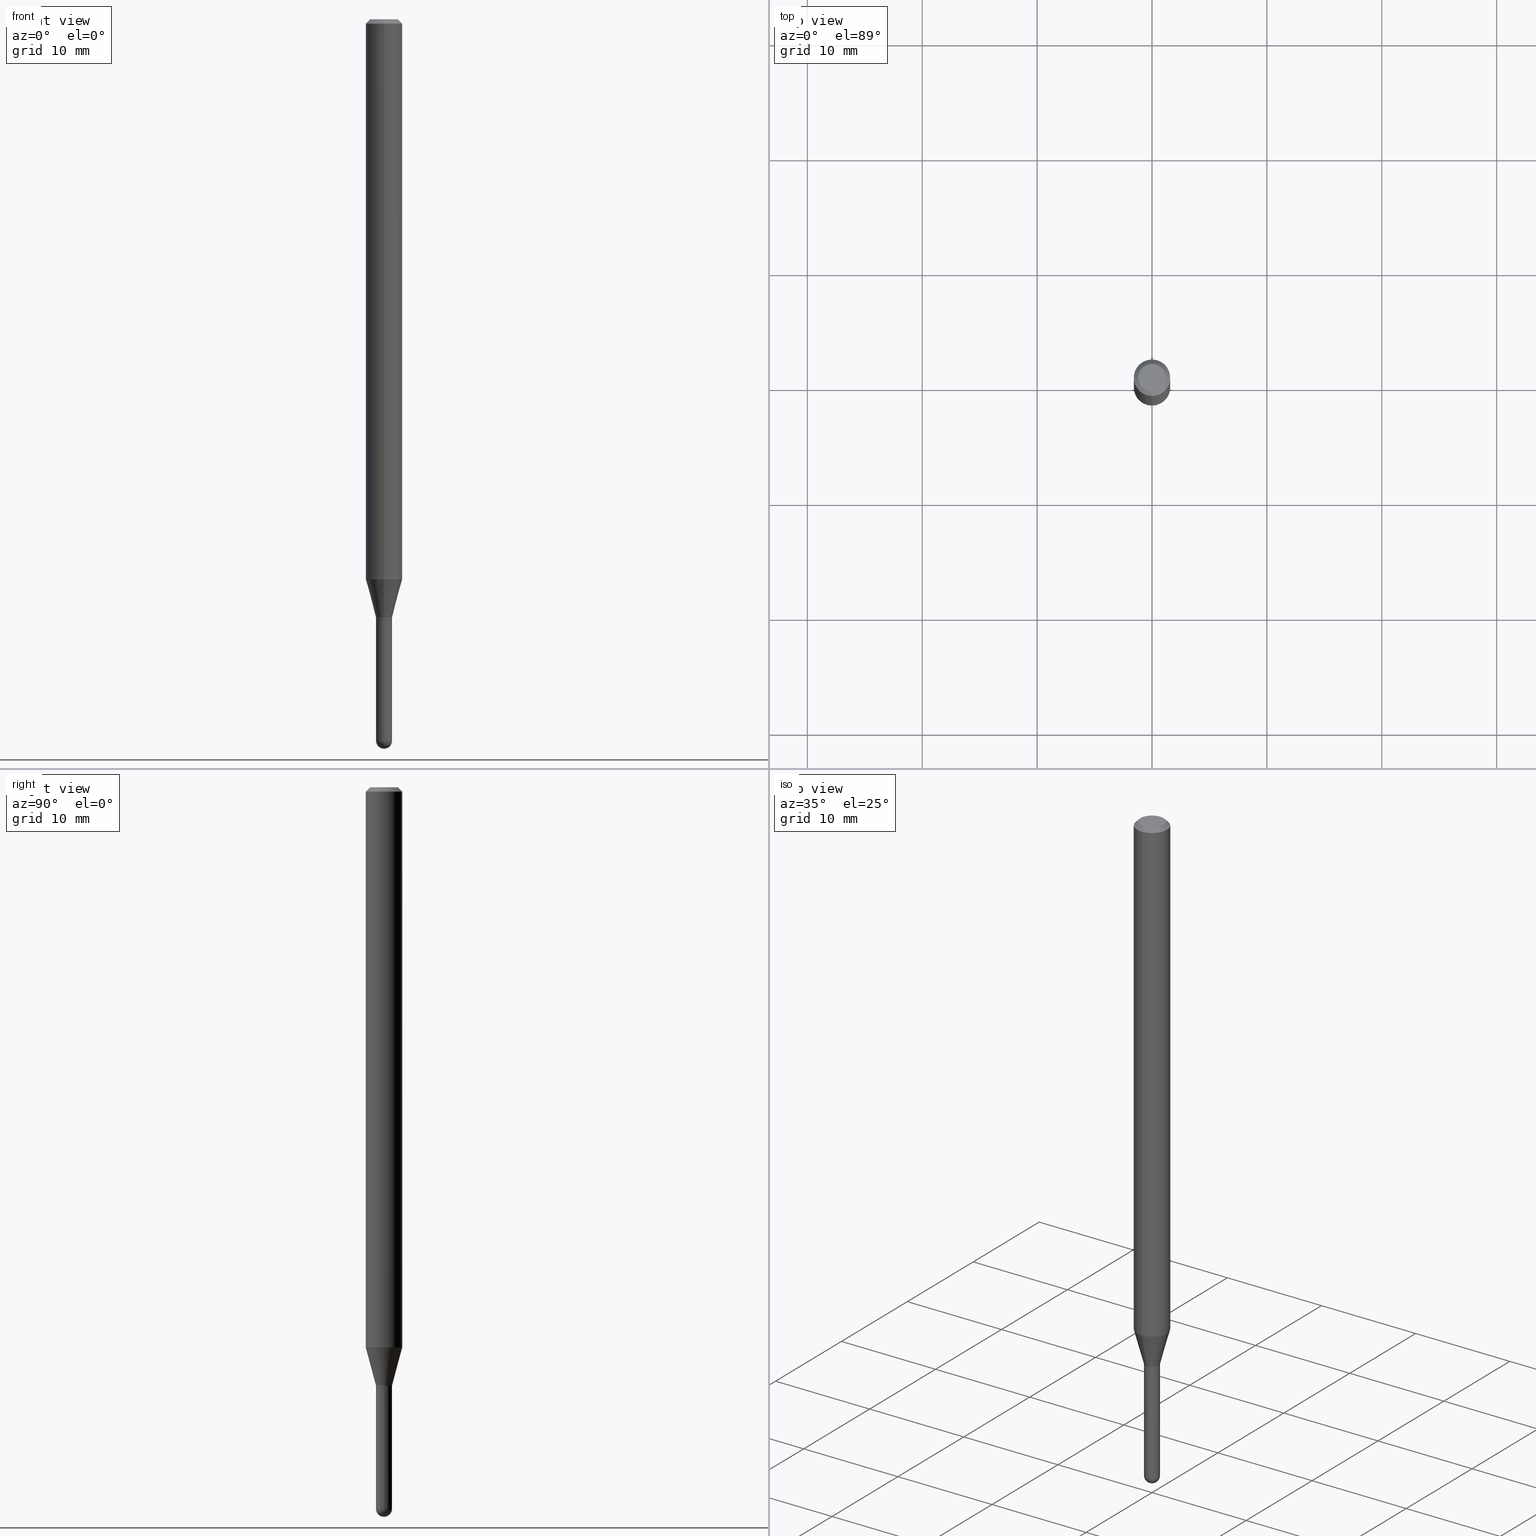
[diagram: canonical four-view strip — front | top / right | iso, engineering-drawing reading convention]
A machine part, canonical four-view strip (front | top / right | iso — engineering-drawing reading convention). The complete STEP part file that produces these views, byte-faithful:
ISO-10303-21;
HEADER;
FILE_DESCRIPTION (( 'STEP AP203' ),
    '1' );
FILE_NAME ('02758.STEP',
    '2024-03-07T21:16:46',
    ( '' ),
    ( '' ),
    'SwSTEP 2.0',
    'SolidWorks 2023',
    '' );
FILE_SCHEMA (( 'CONFIG_CONTROL_DESIGN' ));
ENDSEC;

DATA;
#1 = DIRECTION ( 'NONE',  ( -6.982962677686266711E-15, -1.000000000000000000, 3.491506698791518354E-15 ) ) ;
#2 = PERSON_AND_ORGANIZATION_ROLE ( 'creator' ) ;
#3 = FACE_OUTER_BOUND ( 'NONE', #210, .T. ) ;
#4 = CYLINDRICAL_SURFACE ( 'NONE', #408, 0.02750000000000000014 ) ;
#5 = ORIENTED_EDGE ( 'NONE', *, *, #307, .T. ) ;
#6 = CIRCLE ( 'NONE', #41, 0.02749999999999964972 ) ;
#7 = CONICAL_SURFACE ( 'NONE', #315, 0.02749999999999964972, 0.2617993877991502960 ) ;
#8 = ORIENTED_EDGE ( 'NONE', *, *, #510, .T. ) ;
#9 = EDGE_LOOP ( 'NONE', ( #335, #368, #131, #413 ) ) ;
#10 = ORIENTED_EDGE ( 'NONE', *, *, #370, .F. ) ;
#11 = DIRECTION ( 'NONE',  ( -6.982962677686265133E-15, -1.000000000000000000, 0.000000000000000000 ) ) ;
#12 = AXIS2_PLACEMENT_3D ( 'NONE', #191, #246, #56 ) ;
#13 = AXIS2_PLACEMENT_3D ( 'NONE', #217, #214, #331 ) ;
#14 = ORIENTED_EDGE ( 'NONE', *, *, #364, .F. ) ;
#15 = CARTESIAN_POINT ( 'NONE',  ( 5.013174749727065980E-29, -7.157588732522609785E-15, -2.049999999999999822 ) ) ;
#16 = ORIENTED_EDGE ( 'NONE', *, *, #126, .F. ) ;
#17 = DIRECTION ( 'NONE',  ( 5.024295867788190974E-15, 0.7071067811865681119, 0.7071067811865270336 ) ) ;
#18 = DIRECTION ( 'NONE',  ( -6.982962677686266711E-15, -1.000000000000000000, 0.000000000000000000 ) ) ;
#19 = EDGE_CURVE ( 'NONE', #230, #208, #312, .T. ) ;
#20 = CARTESIAN_POINT ( 'NONE',  ( 1.918465386552773872E-16, 0.02699999999999280753, -2.060000000000000053 ) ) ;
#21 = AXIS2_PLACEMENT_3D ( 'NONE', #455, #458, #506 ) ;
#22 = EDGE_CURVE ( 'NONE', #59, #359, #165, .T. ) ;
#23 = EDGE_LOOP ( 'NONE', ( #38, #404 ) ) ;
#24 = DIRECTION ( 'NONE',  ( -6.982962677686265922E-15, -1.000000000000000000, 3.483106191921935554E-15 ) ) ;
#25 = LINE ( 'NONE', #258, #195 ) ;
#26 = EDGE_CURVE ( 'NONE', #443, #442, #293, .T. ) ;
#27 = DIRECTION ( 'NONE',  ( -6.982962677686265922E-15, -1.000000000000000000, 3.491506698791517959E-15 ) ) ;
#28 = CARTESIAN_POINT ( 'NONE',  ( 0.000000000000000000, 0.000000000000000000, 0.000000000000000000 ) ) ;
#29 = UNCERTAINTY_MEASURE_WITH_UNIT (LENGTH_MEASURE( 1.000000000000000082E-05 ), #336, 'distance_accuracy_value', 'NONE');
#30 = CLOSED_SHELL ( 'NONE', ( #281, #187, #394, #270, #206 ) ) ;
#31 = CIRCLE ( 'NONE', #12, 0.02750000000000000014 ) ;
#32 = CIRCLE ( 'NONE', #462, 0.02749999999999964972 ) ;
#33 =( NAMED_UNIT ( * ) PLANE_ANGLE_UNIT ( ) SI_UNIT ( $, .RADIAN. ) );
#34 = CARTESIAN_POINT ( 'NONE',  ( 6.044069915997506284E-29, -8.636055388987333140E-15, -2.472500000000000142 ) ) ;
#35 = CARTESIAN_POINT ( 'NONE',  ( 1.953992523340250376E-16, 0.02749999999999964972, -9.601643421676552804E-17 ) ) ;
#36 = SPHERICAL_SURFACE ( 'NONE', #470, 0.02749999999999982320 ) ;
#37 = EDGE_CURVE ( 'NONE', #385, #306, #423, .T. ) ;
#38 = ORIENTED_EDGE ( 'NONE', *, *, #276, .T. ) ;
#39 = LINE ( 'NONE', #343, #202 ) ;
#40 = FACE_OUTER_BOUND ( 'NONE', #9, .T. ) ;
#41 = AXIS2_PLACEMENT_3D ( 'NONE', #344, #236, #507 ) ;
#42 = DIRECTION ( 'NONE',  ( -2.445451097427837378E-29, 3.491506698791517959E-15, 1.000000000000000000 ) ) ;
#43 = PERSON_AND_ORGANIZATION_ROLE ( 'classification_officer' ) ;
#44 = DIRECTION ( 'NONE',  ( 1.000000000000000000, -6.982962677686266711E-15, 4.876176775795935793E-29 ) ) ;
#45 = ORIENTED_EDGE ( 'NONE', *, *, #301, .F. ) ;
#46 = CIRCLE ( 'NONE', #21, 0.06250000000000000000 ) ;
#47 = DATE_TIME_ROLE ( 'creation_date' ) ;
#48 = CARTESIAN_POINT ( 'NONE',  ( 1.920314736364321499E-16, 0.02749999999999128142, -2.472499999999999254 ) ) ;
#49 = EDGE_LOOP ( 'NONE', ( #282, #444, #205, #274 ) ) ;
#50 = EDGE_CURVE ( 'NONE', #443, #306, #31, .T. ) ;
#51 = ORIENTED_EDGE ( 'NONE', *, *, #58, .T. ) ;
#52 = APPROVAL ( #71, 'UNSPECIFIED' ) ;
#53 = ORIENTED_EDGE ( 'NONE', *, *, #75, .F. ) ;
#54 = DIRECTION ( 'NONE',  ( 2.445451097427837098E-29, -3.491506698791517959E-15, -1.000000000000000000 ) ) ;
#55 = AXIS2_PLACEMENT_3D ( 'NONE', #311, #232, #269 ) ;
#56 = DIRECTION ( 'NONE',  ( 1.000000000000000000, -6.982962677686279332E-15, 0.000000000000000000 ) ) ;
#57 = CARTESIAN_POINT ( 'NONE',  ( 5.036406535152632106E-29, -7.190758046161131147E-15, -2.059500000000000330 ) ) ;
#58 = EDGE_CURVE ( 'NONE', #359, #420, #66, .T. ) ;
#59 = VERTEX_POINT ( 'NONE', #297 ) ;
#60 = DIRECTION ( 'NONE',  ( -6.982962677686266711E-15, -1.000000000000000000, 0.000000000000000000 ) ) ;
#61 = CC_DESIGN_PERSON_AND_ORGANIZATION_ASSIGNMENT ( #244, #43, ( #373 ) ) ;
#62 = ORIENTED_EDGE ( 'NONE', *, *, #37, .T. ) ;
#63 = AXIS2_PLACEMENT_3D ( 'NONE', #459, #264, #266 ) ;
#64 = EDGE_CURVE ( 'NONE', #180, #284, #490, .T. ) ;
#65 = LOCAL_TIME ( 16, 16, 46.00000000000000000, #397 ) ;
#66 = LINE ( 'NONE', #20, #247 ) ;
#67 = MECHANICAL_CONTEXT ( 'NONE', #495, 'mechanical' ) ;
#68 = CARTESIAN_POINT ( 'NONE',  ( 6.046421623292748621E-29, -8.632687610289675147E-15, -2.472499999999999254 ) ) ;
#69 = DIRECTION ( 'NONE',  ( -4.851104656540964275E-15, -0.7071067811865500152, -0.7071067811865450192 ) ) ;
#70 = APPLICATION_PROTOCOL_DEFINITION ( 'international standard', 'config_control_design', 1994, #495 ) ;
#71 = APPROVAL_STATUS ( 'not_yet_approved' ) ;
#72 = DIRECTION ( 'NONE',  ( -6.982962677686266711E-15, -1.000000000000000000, 3.491506698791518354E-15 ) ) ;
#73 = LOCAL_TIME ( 16, 16, 46.00000000000000000, #234 ) ;
#74 = FACE_OUTER_BOUND ( 'NONE', #485, .T. ) ;
#75 = EDGE_CURVE ( 'NONE', #436, #230, #447, .T. ) ;
#76 = CARTESIAN_POINT ( 'NONE',  ( -4.364351673553912750E-16, -0.06250000000000005551, -0.01500000000000011047 ) ) ;
#77 = VERTEX_POINT ( 'NONE', #184 ) ;
#78 = DIRECTION ( 'NONE',  ( -2.445451097427837378E-29, 3.491506698791517959E-15, 1.000000000000000000 ) ) ;
#79 = DIRECTION ( 'NONE',  ( -6.982962677686265922E-15, -1.000000000000000000, 3.491506698791517959E-15 ) ) ;
#80 = VERTEX_POINT ( 'NONE', #371 ) ;
#81 = VECTOR ( 'NONE', #90, 39.37007874015748143 ) ;
#82 = APPROVAL_PERSON_ORGANIZATION ( #333, #52, #157 ) ;
#83 = CALENDAR_DATE ( 2024, 7, 3 ) ;
#84 = CARTESIAN_POINT ( 'NONE',  ( 5.013174749727065980E-29, -7.157588732522609785E-15, -2.049999999999999822 ) ) ;
#85 = ORIENTED_EDGE ( 'NONE', *, *, #356, .F. ) ;
#86 = ADVANCED_FACE ( 'NONE', ( #107 ), #186, .T. ) ;
#87 = SHAPE_DEFINITION_REPRESENTATION ( #505, #275 ) ;
#88 = DIRECTION ( 'NONE',  ( 6.982962677686265922E-15, 1.000000000000000000, -3.483106191921935554E-15 ) ) ;
#89 = DATE_AND_TIME ( #167, #96 ) ;
#90 = DIRECTION ( 'NONE',  ( -1.807323732225330139E-15, -0.2588190451025181860, 0.9659258262890689783 ) ) ;
#91 = EDGE_LOOP ( 'NONE', ( #407, #316 ) ) ;
#92 = APPROVAL_DATE_TIME ( #132, #466 ) ;
#93 = APPROVAL_STATUS ( 'not_yet_approved' ) ;
#94 = ORIENTED_EDGE ( 'NONE', *, *, #499, .F. ) ;
#95 = CIRCLE ( 'NONE', #308, 0.02750000000000000014 ) ;
#96 = LOCAL_TIME ( 16, 16, 46.00000000000000000, #399 ) ;
#97 = EDGE_CURVE ( 'NONE', #284, #443, #330, .T. ) ;
#98 = CARTESIAN_POINT ( 'NONE',  ( 3.316907271900976096E-16, 0.04749999999999999362, -3.299194397499030855E-16 ) ) ;
#99 = EDGE_LOOP ( 'NONE', ( #139, #174, #271, #177 ) ) ;
#100 = CARTESIAN_POINT ( 'NONE',  ( -0.02750000000000000014, -7.717170331819249590E-15, -2.060000000000000053 ) ) ;
#101 = ORIENTED_EDGE ( 'NONE', *, *, #22, .T. ) ;
#102 = ORIENTED_EDGE ( 'NONE', *, *, #110, .T. ) ;
#103 = ADVANCED_FACE ( 'NONE', ( #150 ), #295, .T. ) ;
#104 = DIRECTION ( 'NONE',  ( -2.445451097427837378E-29, 3.491506698791517959E-15, 1.000000000000000000 ) ) ;
#105 = CIRCLE ( 'NONE', #55, 0.02749999999999982320 ) ;
#106 = CC_DESIGN_SECURITY_CLASSIFICATION ( #373, ( #156 ) ) ;
#107 = FACE_OUTER_BOUND ( 'NONE', #496, .T. ) ;
#108 = CARTESIAN_POINT ( 'NONE',  ( 6.044069915997506284E-29, -8.636055388987333140E-15, -2.472500000000000142 ) ) ;
#109 = LINE ( 'NONE', #334, #145 ) ;
#110 = EDGE_CURVE ( 'NONE', #420, #80, #313, .T. ) ;
#111 = CARTESIAN_POINT ( 'NONE',  ( 5.036406535152632106E-29, -7.190758046161131147E-15, -2.059500000000000330 ) ) ;
#112 = VECTOR ( 'NONE', #138, 39.37007874015748143 ) ;
#113 = CARTESIAN_POINT ( 'NONE',  ( 6.046421623292748621E-29, -8.632687610289675147E-15, -2.472499999999999254 ) ) ;
#114 = PLANE ( 'NONE',  #511 ) ;
#115 = APPLICATION_PROTOCOL_DEFINITION ( 'international standard', 'config_control_design', 1994, #416 ) ;
#116 = APPROVAL_ROLE ( '' ) ;
#117 = DIRECTION ( 'NONE',  ( -2.445468806185136597E-29, 3.491481338843145583E-15, 1.000000000000000000 ) ) ;
#118 = DIRECTION ( 'NONE',  ( 6.982962677686265922E-15, 1.000000000000000000, -3.483106191921935554E-15 ) ) ;
#119 = FACE_OUTER_BOUND ( 'NONE', #357, .T. ) ;
#120 = ORIENTED_EDGE ( 'NONE', *, *, #290, .F. ) ;
#121 = AXIS2_PLACEMENT_3D ( 'NONE', #34, #396, #204 ) ;
#122 = AXIS2_PLACEMENT_3D ( 'NONE', #28, #226, #252 ) ;
#123 = CARTESIAN_POINT ( 'NONE',  ( 1.953992523340751796E-16, 0.02749999999999249226, -2.049999999999999822 ) ) ;
#124 = LINE ( 'NONE', #432, #81 ) ;
#125 = CARTESIAN_POINT ( 'NONE',  ( 3.668176646141836571E-31, -5.237260048187391028E-17, -0.01500000000000032904 ) ) ;
#126 = EDGE_CURVE ( 'NONE', #420, #77, #251, .T. ) ;
#127 = PERSON_AND_ORGANIZATION_ROLE ( 'design_supplier' ) ;
#128 = CARTESIAN_POINT ( 'NONE',  ( 0.02750000000000000014, -8.104601057789650990E-15, -2.472499999999999254 ) ) ;
#129 = VECTOR ( 'NONE', #448, 39.37007874015748143 ) ;
#130 = CARTESIAN_POINT ( 'NONE',  ( 4.693745578721162808E-29, -6.701521918702610690E-15, -1.919378221735088097 ) ) ;
#131 = ORIENTED_EDGE ( 'NONE', *, *, #215, .F. ) ;
#132 = DATE_AND_TIME ( #265, #409 ) ;
#133 = EDGE_CURVE ( 'NONE', #385, #284, #105, .T. ) ;
#134 = MANIFOLD_SOLID_BREP ( 'Body-Move/Copy2[2]', #422 ) ;
#135 = VERTEX_POINT ( 'NONE', #387 ) ;
#136 = PLANE ( 'NONE',  #341 ) ;
#137 = ORIENTED_EDGE ( 'NONE', *, *, #364, .T. ) ;
#138 = DIRECTION ( 'NONE',  ( -2.445451097427837098E-29, 3.491506698791517959E-15, 1.000000000000000000 ) ) ;
#139 = ORIENTED_EDGE ( 'NONE', *, *, #215, .T. ) ;
#140 = CARTESIAN_POINT ( 'NONE',  ( 0.000000000000000000, 0.000000000000000000, 0.000000000000000000 ) ) ;
#141 = ORIENTED_EDGE ( 'NONE', *, *, #417, .F. ) ;
#142 = CARTESIAN_POINT ( 'NONE',  ( -0.02750000000000000014, 1.953992523340275521E-16, -1.352707149820099181E-30 ) ) ;
#143 = DIRECTION ( 'NONE',  ( -2.445451097427837378E-29, 3.491506698791517959E-15, 1.000000000000000000 ) ) ;
#144 = FACE_OUTER_BOUND ( 'NONE', #433, .T. ) ;
#145 = VECTOR ( 'NONE', #151, 39.37007874015748143 ) ;
#146 = ORIENTED_EDGE ( 'NONE', *, *, #449, .T. ) ;
#147 = DIRECTION ( 'NONE',  ( -2.445451097427837378E-29, 3.491506698791517959E-15, 1.000000000000000000 ) ) ;
#148 = EDGE_CURVE ( 'NONE', #212, #488, #124, .T. ) ;
#149 = CYLINDRICAL_SURFACE ( 'NONE', #207, 0.02750000000000000014 ) ;
#150 = FACE_OUTER_BOUND ( 'NONE', #426, .T. ) ;
#151 = DIRECTION ( 'NONE',  ( -4.937700262164674260E-15, -0.7071067811865632269, 0.7071067811865319186 ) ) ;
#152 = CC_DESIGN_DATE_AND_TIME_ASSIGNMENT ( #227, #502, ( #373 ) ) ;
#153 = CARTESIAN_POINT ( 'NONE',  ( 5.037629260701344785E-29, -7.192503799510525347E-15, -2.060000000000000053 ) ) ;
#154 = DIRECTION ( 'NONE',  ( -2.445468806185136597E-29, 3.491481338843145583E-15, 1.000000000000000000 ) ) ;
#155 = AXIS2_PLACEMENT_3D ( 'NONE', #111, #219, #60 ) ;
#156 = PRODUCT_DEFINITION_FORMATION_WITH_SPECIFIED_SOURCE ( 'ANY', '', #288, .NOT_KNOWN. ) ;
#157 = APPROVAL_ROLE ( '' ) ;
#158 = PERSON_AND_ORGANIZATION ( #464, #512 ) ;
#159 = DESIGN_CONTEXT ( 'detailed design', #416, 'design' ) ;
#160 = EDGE_CURVE ( 'NONE', #442, #135, #339, .T. ) ;
#161 = CARTESIAN_POINT ( 'NONE',  ( 5.037665740741381905E-29, -7.192451558016880271E-15, -2.060000000000000053 ) ) ;
#162 = ADVANCED_FACE ( 'NONE', ( #40 ), #203, .T. ) ;
#163 = APPROVAL_STATUS ( 'not_yet_approved' ) ;
#164 = DIRECTION ( 'NONE',  ( -1.000000000000000000, 6.982962677686265922E-15, -4.883557194083112340E-29 ) ) ;
#165 = CIRCLE ( 'NONE', #253, 0.02699999999999999969 ) ;
#166 = CARTESIAN_POINT ( 'NONE',  ( 1.936228954946764066E-16, 0.02699999999999280753, -2.060000000000000053 ) ) ;
#167 = CALENDAR_DATE ( 2024, 7, 3 ) ;
#168 = DIRECTION ( 'NONE',  ( -2.445468806185136597E-29, 3.491481338843145583E-15, 1.000000000000000000 ) ) ;
#169 = PERSON_AND_ORGANIZATION ( #464, #512 ) ;
#170 = CARTESIAN_POINT ( 'NONE',  ( -1.920314736363197372E-16, -0.02750000000000681066, -2.049999999999999822 ) ) ;
#171 = AXIS2_PLACEMENT_3D ( 'NONE', #386, #78, #299 ) ;
#172 = EDGE_LOOP ( 'NONE', ( #101, #51, #94, #45 ) ) ;
#173 = CONICAL_SURFACE ( 'NONE', #392, 0.06250000000000000000, 0.7853981633974483900 ) ;
#174 = ORIENTED_EDGE ( 'NONE', *, *, #356, .T. ) ;
#175 = ORIENTED_EDGE ( 'NONE', *, *, #220, .T. ) ;
#176 = LINE ( 'NONE', #480, #401 ) ;
#177 = ORIENTED_EDGE ( 'NONE', *, *, #148, .F. ) ;
#178 = VECTOR ( 'NONE', #200, 39.37007874015748143 ) ;
#179 = APPROVAL_PERSON_ORGANIZATION ( #169, #257, #319 ) ;
#180 = VERTEX_POINT ( 'NONE', #128 ) ;
#181 = CARTESIAN_POINT ( 'NONE',  ( -3.773273898774340269E-16, -0.04749999999999999362, -1.622991749220149071E-16 ) ) ;
#182 = ORIENTED_EDGE ( 'NONE', *, *, #64, .T. ) ;
#183 = CARTESIAN_POINT ( 'NONE',  ( -4.287811248607203282E-16, -0.06250000000000005551, -0.01500000000000011047 ) ) ;
#184 = CARTESIAN_POINT ( 'NONE',  ( 3.197442310920924528E-16, 0.02749999999999249226, -2.049999999999999822 ) ) ;
#185 = CONICAL_SURFACE ( 'NONE', #291, 0.02749999999999964972, 0.2617993877991502960 ) ;
#186 = CYLINDRICAL_SURFACE ( 'NONE', #298, 0.06250000000000000000 ) ;
#187 = ADVANCED_FACE ( 'NONE', ( #3 ), #393, .T. ) ;
#188 = DIRECTION ( 'NONE',  ( -2.445451097427837098E-29, 3.491506698791517959E-15, 1.000000000000000000 ) ) ;
#189 = ORIENTED_EDGE ( 'NONE', *, *, #370, .T. ) ;
#190 = APPROVAL_DATE_TIME ( #342, #52 ) ;
#191 = CARTESIAN_POINT ( 'NONE',  ( 6.046421623292748621E-29, -8.632687610289675147E-15, -2.472499999999999254 ) ) ;
#192 = CARTESIAN_POINT ( 'NONE',  ( 4.364351673553919652E-16, 0.06249999999999995143, -0.01500000000000054588 ) ) ;
#193 = ADVANCED_FACE ( 'NONE', ( #472 ), #185, .T. ) ;
#194 = AXIS2_PLACEMENT_3D ( 'NONE', #130, #346, #305 ) ;
#195 = VECTOR ( 'NONE', #188, 39.37007874015748143 ) ;
#196 = DIRECTION ( 'NONE',  ( 4.937700262164548042E-15, 0.7071067811865451302, -0.7071067811865499042 ) ) ;
#197 = PRODUCT_DEFINITION ( 'UNKNOWN', '', #156, #159 ) ;
#198 = DIRECTION ( 'NONE',  ( -6.982962677686266711E-15, -1.000000000000000000, 0.000000000000000000 ) ) ;
#199 = CARTESIAN_POINT ( 'NONE',  ( 6.112496161815219763E-29, -8.730387236456689995E-15, -2.499999999999999556 ) ) ;
#200 = DIRECTION ( 'NONE',  ( -2.445451097427837098E-29, 3.491506698791517959E-15, 1.000000000000000000 ) ) ;
#201 = ADVANCED_FACE ( 'NONE', ( #239 ), #314, .F. ) ;
#202 = VECTOR ( 'NONE', #340, 39.37007874015748143 ) ;
#203 = CYLINDRICAL_SURFACE ( 'NONE', #372, 0.02749999999999964972 ) ;
#204 = DIRECTION ( 'NONE',  ( 6.982962677686265922E-15, 1.000000000000000000, 0.000000000000000000 ) ) ;
#205 = ORIENTED_EDGE ( 'NONE', *, *, #301, .T. ) ;
#206 = ADVANCED_FACE ( 'NONE', ( #229 ), #4, .T. ) ;
#207 = AXIS2_PLACEMENT_3D ( 'NONE', #475, #402, #296 ) ;
#208 = VERTEX_POINT ( 'NONE', #351 ) ;
#209 = ORIENTED_EDGE ( 'NONE', *, *, #26, .F. ) ;
#210 = EDGE_LOOP ( 'NONE', ( #317, #62, #355, #218 ) ) ;
#211 = DIRECTION ( 'NONE',  ( 6.982962677686265922E-15, 1.000000000000000000, -3.491506698791517959E-15 ) ) ;
#212 = VERTEX_POINT ( 'NONE', #170 ) ;
#213 = AXIS2_PLACEMENT_3D ( 'NONE', #418, #329, #24 ) ;
#214 = DIRECTION ( 'NONE',  ( -2.445451097427837378E-29, 3.491506698791517959E-15, 1.000000000000000000 ) ) ;
#215 = EDGE_CURVE ( 'NONE', #212, #77, #6, .T. ) ;
#216 = DIRECTION ( 'NONE',  ( 1.000000000000000000, -6.982962677686279332E-15, 0.000000000000000000 ) ) ;
#217 = CARTESIAN_POINT ( 'NONE',  ( 4.693745578721162808E-29, -6.701521918702610690E-15, -1.919378221735088097 ) ) ;
#218 = ORIENTED_EDGE ( 'NONE', *, *, #97, .F. ) ;
#219 = DIRECTION ( 'NONE',  ( -2.445451097427837378E-29, 3.491506698791517959E-15, 1.000000000000000000 ) ) ;
#220 = EDGE_CURVE ( 'NONE', #488, #358, #482, .T. ) ;
#221 = DIRECTION ( 'NONE',  ( -1.000000000000000000, 7.105427357601001070E-15, -4.926315508542082329E-29 ) ) ;
#222 = LOCAL_TIME ( 16, 16, 46.00000000000000000, #302 ) ;
#223 = ORIENTED_EDGE ( 'NONE', *, *, #148, .T. ) ;
#224 = PERSON_AND_ORGANIZATION_ROLE ( 'design_owner' ) ;
#225 = ORIENTED_EDGE ( 'NONE', *, *, #19, .T. ) ;
#226 = DIRECTION ( 'NONE',  ( 0.000000000000000000, 0.000000000000000000, 1.000000000000000000 ) ) ;
#227 = DATE_AND_TIME ( #350, #65 ) ;
#228 = CARTESIAN_POINT ( 'NONE',  ( 1.953992523340747112E-16, 0.02749999999999236389, -2.059500000000000330 ) ) ;
#229 = FACE_OUTER_BOUND ( 'NONE', #405, .T. ) ;
#230 = VERTEX_POINT ( 'NONE', #76 ) ;
#231 = CARTESIAN_POINT ( 'NONE',  ( 4.440892098501092576E-16, 0.06249999999999326927, -1.919378221735088319 ) ) ;
#232 = DIRECTION ( 'NONE',  ( 1.000000000000000000, -6.982962677686265922E-15, 4.883557194083112340E-29 ) ) ;
#233 = CC_DESIGN_PERSON_AND_ORGANIZATION_ASSIGNMENT ( #395, #127, ( #156 ) ) ;
#234 = COORDINATED_UNIVERSAL_TIME_OFFSET ( 5, 0, .BEHIND. ) ;
#235 = AXIS2_PLACEMENT_3D ( 'NONE', #431, #382, #465 ) ;
#236 = DIRECTION ( 'NONE',  ( -2.445451097427837378E-29, 3.491506698791517959E-15, 1.000000000000000000 ) ) ;
#237 = CONICAL_SURFACE ( 'NONE', #363, 0.06250000000000000000, 0.7853981633974483900 ) ;
#238 = PERSON_AND_ORGANIZATION ( #464, #512 ) ;
#239 = FACE_OUTER_BOUND ( 'NONE', #477, .T. ) ;
#240 = CARTESIAN_POINT ( 'NONE',  ( -1.953992523339664400E-16, -0.02750000000000854192, -2.472499999999999254 ) ) ;
#241 = ORIENTED_EDGE ( 'NONE', *, *, #97, .T. ) ;
#242 = AXIS2_PLACEMENT_3D ( 'NONE', #108, #221, #289 ) ;
#243 = AXIS2_PLACEMENT_3D ( 'NONE', #245, #366, #292 ) ;
#244 = PERSON_AND_ORGANIZATION ( #464, #512 ) ;
#245 = CARTESIAN_POINT ( 'NONE',  ( 0.000000000000000000, 0.000000000000000000, 0.000000000000000000 ) ) ;
#246 = DIRECTION ( 'NONE',  ( -2.445468806185136597E-29, 3.491481338843145583E-15, 1.000000000000000000 ) ) ;
#247 = VECTOR ( 'NONE', #17, 39.37007874015748143 ) ;
#248 = CARTESIAN_POINT ( 'NONE',  ( -4.364351673553448308E-16, -0.06250000000000671685, -1.919378221735087875 ) ) ;
#249 = DIRECTION ( 'NONE',  ( -6.982962677686265133E-15, -1.000000000000000000, 0.000000000000000000 ) ) ;
#250 = EDGE_LOOP ( 'NONE', ( #85, #453, #223, #324 ) ) ;
#251 = LINE ( 'NONE', #35, #178 ) ;
#252 = DIRECTION ( 'NONE',  ( 1.000000000000000000, 0.000000000000000000, 0.000000000000000000 ) ) ;
#253 = AXIS2_PLACEMENT_3D ( 'NONE', #153, #285, #249 ) ;
#254 = AXIS2_PLACEMENT_3D ( 'NONE', #424, #259, #72 ) ;
#255 = DIRECTION ( 'NONE',  ( -2.445468806185136597E-29, 3.491481338843145583E-15, 1.000000000000000000 ) ) ;
#256 = DIRECTION ( 'NONE',  ( 1.000000000000000000, -6.982962677686279332E-15, 0.000000000000000000 ) ) ;
#257 = APPROVAL ( #93, 'UNSPECIFIED' ) ;
#258 = CARTESIAN_POINT ( 'NONE',  ( -1.920314736363698792E-16, -0.02749999999999964972, 9.601643421676552804E-17 ) ) ;
#259 = DIRECTION ( 'NONE',  ( -2.445451097427837378E-29, 3.491506698791517959E-15, 1.000000000000000000 ) ) ;
#260 = COORDINATED_UNIVERSAL_TIME_OFFSET ( 5, 0, .BEHIND. ) ;
#261 = CC_DESIGN_APPROVAL ( #466, ( #373 ) ) ;
#262 = ORIENTED_EDGE ( 'NONE', *, *, #307, .F. ) ;
#263 = ADVANCED_FACE ( 'NONE', ( #272 ), #390, .T. ) ;
#264 = DIRECTION ( 'NONE',  ( -2.445451097427837378E-29, 3.491506698791517959E-15, 1.000000000000000000 ) ) ;
#265 = CALENDAR_DATE ( 2024, 7, 3 ) ;
#266 = DIRECTION ( 'NONE',  ( -6.982962677686265133E-15, -1.000000000000000000, 0.000000000000000000 ) ) ;
#267 = SECURITY_CLASSIFICATION_LEVEL ( 'unclassified' ) ;
#268 = AXIS2_PLACEMENT_3D ( 'NONE', #113, #255, #216 ) ;
#269 = DIRECTION ( 'NONE',  ( 6.982962677686265133E-15, 1.000000000000000000, 0.000000000000000000 ) ) ;
#270 = ADVANCED_FACE ( 'NONE', ( #119 ), #36, .T. ) ;
#271 = ORIENTED_EDGE ( 'NONE', *, *, #220, .F. ) ;
#272 = FACE_OUTER_BOUND ( 'NONE', #172, .T. ) ;
#273 = ORIENTED_EDGE ( 'NONE', *, *, #276, .F. ) ;
#274 = ORIENTED_EDGE ( 'NONE', *, *, #110, .F. ) ;
#275 = ADVANCED_BREP_SHAPE_REPRESENTATION ( '02758', ( #463, #134, #122 ), #471 ) ;
#276 = EDGE_CURVE ( 'NONE', #474, #436, #362, .T. ) ;
#277 = ORIENTED_EDGE ( 'NONE', *, *, #388, .F. ) ;
#278 = CIRCLE ( 'NONE', #347, 0.02749999999999964972 ) ;
#279 = APPROVAL_PERSON_ORGANIZATION ( #158, #466, #116 ) ;
#280 = CARTESIAN_POINT ( 'NONE',  ( -0.02750000000000000014, -7.717170331819249590E-15, -2.472499999999999254 ) ) ;
#281 = ADVANCED_FACE ( 'NONE', ( #144 ), #149, .T. ) ;
#282 = ORIENTED_EDGE ( 'NONE', *, *, #58, .F. ) ;
#283 = FACE_OUTER_BOUND ( 'NONE', #440, .T. ) ;
#284 = VERTEX_POINT ( 'NONE', #48 ) ;
#285 = DIRECTION ( 'NONE',  ( -2.445451097427837378E-29, 3.491506698791517959E-15, 1.000000000000000000 ) ) ;
#286 = CARTESIAN_POINT ( 'NONE',  ( 4.440892098500625669E-16, 0.06250000000000000000, -2.182191686744698724E-16 ) ) ;
#287 = ORIENTED_EDGE ( 'NONE', *, *, #328, .T. ) ;
#288 = PRODUCT ( '02758', '02758', '', ( #67 ) ) ;
#289 = DIRECTION ( 'NONE',  ( -7.105427357601000281E-15, -1.000000000000000000, 0.000000000000000000 ) ) ;
#290 = EDGE_CURVE ( 'NONE', #488, #230, #176, .T. ) ;
#291 = AXIS2_PLACEMENT_3D ( 'NONE', #84, #42, #198 ) ;
#292 = DIRECTION ( 'NONE',  ( -6.982962677686266711E-15, -1.000000000000000000, 3.491506698791518354E-15 ) ) ;
#293 = LINE ( 'NONE', #142, #129 ) ;
#294 = DIRECTION ( 'NONE',  ( -2.445451097427837098E-29, 3.491506698791517959E-15, 1.000000000000000000 ) ) ;
#295 = CYLINDRICAL_SURFACE ( 'NONE', #438, 0.06250000000000000000 ) ;
#296 = DIRECTION ( 'NONE',  ( 1.000000000000000000, -6.982962677686266711E-15, 4.876176775795935793E-29 ) ) ;
#297 = CARTESIAN_POINT ( 'NONE',  ( -1.885399922974788009E-16, -0.02700000000000719186, -2.060000000000000053 ) ) ;
#298 = AXIS2_PLACEMENT_3D ( 'NONE', #365, #326, #27 ) ;
#299 = DIRECTION ( 'NONE',  ( -6.982962677686265133E-15, -1.000000000000000000, 0.000000000000000000 ) ) ;
#300 = CIRCLE ( 'NONE', #254, 0.04749999999999999362 ) ;
#301 = EDGE_CURVE ( 'NONE', #59, #80, #109, .T. ) ;
#302 = COORDINATED_UNIVERSAL_TIME_OFFSET ( 5, 0, .BEHIND. ) ;
#303 = DIRECTION ( 'NONE',  ( -1.000000000000000000, 6.982962677686265922E-15, -4.876176775795935793E-29 ) ) ;
#304 = DIRECTION ( 'NONE',  ( -2.445451097427837378E-29, 3.491506698791517959E-15, 1.000000000000000000 ) ) ;
#305 = DIRECTION ( 'NONE',  ( -6.982962677686265922E-15, -1.000000000000000000, 4.370956789862821150E-15 ) ) ;
#306 = VERTEX_POINT ( 'NONE', #240 ) ;
#307 = EDGE_CURVE ( 'NONE', #474, #208, #398, .T. ) ;
#308 = AXIS2_PLACEMENT_3D ( 'NONE', #161, #117, #256 ) ;
#309 = DIRECTION ( 'NONE',  ( 6.982962677686265922E-15, 1.000000000000000000, 0.000000000000000000 ) ) ;
#310 = DIRECTION ( 'NONE',  ( -2.445451097427837098E-29, 3.491506698791517959E-15, 1.000000000000000000 ) ) ;
#311 = CARTESIAN_POINT ( 'NONE',  ( 6.044069915997506284E-29, -8.636055388987333140E-15, -2.472500000000000142 ) ) ;
#312 = CIRCLE ( 'NONE', #213, 0.06250000000000000000 ) ;
#313 = CIRCLE ( 'NONE', #155, 0.02749999999999964972 ) ;
#314 = PLANE ( 'NONE',  #391 ) ;
#315 = AXIS2_PLACEMENT_3D ( 'NONE', #15, #104, #18 ) ;
#316 = ORIENTED_EDGE ( 'NONE', *, *, #160, .T. ) ;
#317 = ORIENTED_EDGE ( 'NONE', *, *, #133, .F. ) ;
#318 = ORIENTED_EDGE ( 'NONE', *, *, #133, .T. ) ;
#319 = APPROVAL_ROLE ( '' ) ;
#320 = DIMENSIONAL_EXPONENTS ( 1.000000000000000000, 0.000000000000000000, 0.000000000000000000, 0.000000000000000000, 0.000000000000000000, 0.000000000000000000, 0.000000000000000000 ) ;
#321 = CC_DESIGN_PERSON_AND_ORGANIZATION_ASSIGNMENT ( #497, #2, ( #197 ) ) ;
#322 = AXIS2_PLACEMENT_3D ( 'NONE', #486, #332, #493 ) ;
#323 = CC_DESIGN_APPROVAL ( #52, ( #197 ) ) ;
#324 = ORIENTED_EDGE ( 'NONE', *, *, #449, .F. ) ;
#325 = ORIENTED_EDGE ( 'NONE', *, *, #349, .F. ) ;
#326 = DIRECTION ( 'NONE',  ( -2.445451097427837378E-29, 3.491506698791517959E-15, 1.000000000000000000 ) ) ;
#327 = DIRECTION ( 'NONE',  ( -6.982962677686266711E-15, -1.000000000000000000, 0.000000000000000000 ) ) ;
#328 = EDGE_CURVE ( 'NONE', #306, #180, #452, .T. ) ;
#329 = DIRECTION ( 'NONE',  ( -2.445451097427837378E-29, 3.491506698791517959E-15, 1.000000000000000000 ) ) ;
#330 = CIRCLE ( 'NONE', #322, 0.02750000000000000014 ) ;
#331 = DIRECTION ( 'NONE',  ( -6.982962677686265922E-15, -1.000000000000000000, 4.370956789862821150E-15 ) ) ;
#332 = DIRECTION ( 'NONE',  ( -2.445468806185136597E-29, 3.491481338843145583E-15, 1.000000000000000000 ) ) ;
#333 = PERSON_AND_ORGANIZATION ( #464, #512 ) ;
#334 = CARTESIAN_POINT ( 'NONE',  ( -1.885399922974788009E-16, -0.02700000000000719186, -2.060000000000000053 ) ) ;
#335 = ORIENTED_EDGE ( 'NONE', *, *, #499, .T. ) ;
#336 =( CONVERSION_BASED_UNIT ( 'INCH', #494 ) LENGTH_UNIT ( ) NAMED_UNIT ( #320 ) );
#337 = CARTESIAN_POINT ( 'NONE',  ( 5.013174749727065980E-29, -7.157588732522609785E-15, -2.049999999999999822 ) ) ;
#338 = CC_DESIGN_PERSON_AND_ORGANIZATION_ASSIGNMENT ( #379, #224, ( #288 ) ) ;
#339 = CIRCLE ( 'NONE', #235, 0.02750000000000000014 ) ;
#340 = DIRECTION ( 'NONE',  ( -2.445468806185136877E-29, 3.491481338843145188E-15, 1.000000000000000000 ) ) ;
#341 = AXIS2_PLACEMENT_3D ( 'NONE', #98, #54, #211 ) ;
#342 = DATE_AND_TIME ( #375, #222 ) ;
#343 = CARTESIAN_POINT ( 'NONE',  ( 0.02750000000000000014, -1.920314736363723444E-16, 1.340948613343882413E-30 ) ) ;
#344 = CARTESIAN_POINT ( 'NONE',  ( 5.013174749727065980E-29, -7.157588732522609785E-15, -2.049999999999999822 ) ) ;
#345 = CARTESIAN_POINT ( 'NONE',  ( 1.920314736364227082E-16, 0.02749999999999280798, -2.060000000000000053 ) ) ;
#346 = DIRECTION ( 'NONE',  ( -2.445451097427837378E-29, 3.491506698791517959E-15, 1.000000000000000000 ) ) ;
#347 = AXIS2_PLACEMENT_3D ( 'NONE', #337, #304, #498 ) ;
#348 = CARTESIAN_POINT ( 'NONE',  ( 8.024643676159010225E-45, -1.145723060264588422E-30, -3.281457431146119786E-16 ) ) ;
#349 = EDGE_CURVE ( 'NONE', #359, #59, #380, .T. ) ;
#350 = CALENDAR_DATE ( 2024, 7, 3 ) ;
#351 = CARTESIAN_POINT ( 'NONE',  ( 4.440892098501098492E-16, 0.06249999999999995143, -0.01500000000000054588 ) ) ;
#352 = ORIENTED_EDGE ( 'NONE', *, *, #19, .F. ) ;
#353 = AXIS2_PLACEMENT_3D ( 'NONE', #68, #154, #508 ) ;
#354 = CC_DESIGN_APPROVAL ( #257, ( #156 ) ) ;
#355 = ORIENTED_EDGE ( 'NONE', *, *, #50, .F. ) ;
#356 = EDGE_CURVE ( 'NONE', #77, #358, #381, .T. ) ;
#357 = EDGE_LOOP ( 'NONE', ( #429, #318, #377, #487 ) ) ;
#358 = VERTEX_POINT ( 'NONE', #231 ) ;
#359 = VERTEX_POINT ( 'NONE', #166 ) ;
#360 = CARTESIAN_POINT ( 'NONE',  ( 5.037629260701344785E-29, -7.192503799510525347E-15, -2.060000000000000053 ) ) ;
#361 = ORIENTED_EDGE ( 'NONE', *, *, #473, .F. ) ;
#362 = CIRCLE ( 'NONE', #430, 0.04749999999999999362 ) ;
#363 = AXIS2_PLACEMENT_3D ( 'NONE', #125, #389, #88 ) ;
#364 = EDGE_CURVE ( 'NONE', #180, #135, #39, .T. ) ;
#365 = CARTESIAN_POINT ( 'NONE',  ( 0.000000000000000000, 0.000000000000000000, 0.000000000000000000 ) ) ;
#366 = DIRECTION ( 'NONE',  ( -2.445451097427837378E-29, 3.491506698791517959E-15, 1.000000000000000000 ) ) ;
#367 = CC_DESIGN_PERSON_AND_ORGANIZATION_ASSIGNMENT ( #238, #468, ( #156 ) ) ;
#368 = ORIENTED_EDGE ( 'NONE', *, *, #126, .T. ) ;
#369 = ORIENTED_EDGE ( 'NONE', *, *, #50, .T. ) ;
#370 = EDGE_CURVE ( 'NONE', #208, #230, #46, .T. ) ;
#371 = CARTESIAN_POINT ( 'NONE',  ( -1.920314736363201563E-16, -0.02750000000000693903, -2.059500000000000330 ) ) ;
#372 = AXIS2_PLACEMENT_3D ( 'NONE', #469, #428, #425 ) ;
#373 = SECURITY_CLASSIFICATION ( '', '', #267 ) ;
#374 = ORIENTED_EDGE ( 'NONE', *, *, #26, .T. ) ;
#375 = CALENDAR_DATE ( 2024, 7, 3 ) ;
#376 = FACE_OUTER_BOUND ( 'NONE', #91, .T. ) ;
#377 = ORIENTED_EDGE ( 'NONE', *, *, #64, .F. ) ;
#378 = CARTESIAN_POINT ( 'NONE',  ( 3.668176646141836571E-31, -5.237260048187391028E-17, -0.01500000000000032904 ) ) ;
#379 = PERSON_AND_ORGANIZATION ( #464, #512 ) ;
#380 = CIRCLE ( 'NONE', #171, 0.02699999999999999969 ) ;
#381 = LINE ( 'NONE', #123, #445 ) ;
#382 = DIRECTION ( 'NONE',  ( -2.445468806185136597E-29, 3.491481338843145583E-15, 1.000000000000000000 ) ) ;
#383 = DIRECTION ( 'NONE',  ( 1.839019923739600315E-15, 0.2588190451025249583, 0.9659258262890670910 ) ) ;
#384 = DIRECTION ( 'NONE',  ( -2.445451097427837378E-29, 3.491506698791517959E-15, 1.000000000000000000 ) ) ;
#385 = VERTEX_POINT ( 'NONE', #199 ) ;
#386 = CARTESIAN_POINT ( 'NONE',  ( 5.037629260701344785E-29, -7.192503799510525347E-15, -2.060000000000000053 ) ) ;
#387 = CARTESIAN_POINT ( 'NONE',  ( 0.02750000000000000014, -7.384483031653253552E-15, -2.060000000000000053 ) ) ;
#388 = EDGE_CURVE ( 'NONE', #135, #442, #95, .T. ) ;
#389 = DIRECTION ( 'NONE',  ( 2.445451097427837378E-29, -3.491506698791517959E-15, -1.000000000000000000 ) ) ;
#390 = CONICAL_SURFACE ( 'NONE', #63, 0.02699999999999999969, 0.7853981633974739252 ) ;
#391 = AXIS2_PLACEMENT_3D ( 'NONE', #427, #310, #79 ) ;
#392 = AXIS2_PLACEMENT_3D ( 'NONE', #378, #457, #118 ) ;
#393 = SPHERICAL_SURFACE ( 'NONE', #121, 0.02749999999999982320 ) ;
#394 = ADVANCED_FACE ( 'NONE', ( #376 ), #114, .F. ) ;
#395 = PERSON_AND_ORGANIZATION ( #464, #512 ) ;
#396 = DIRECTION ( 'NONE',  ( -1.000000000000000000, 6.982962677686265922E-15, -4.883557194083112340E-29 ) ) ;
#397 = COORDINATED_UNIVERSAL_TIME_OFFSET ( 5, 0, .BEHIND. ) ;
#398 = LINE ( 'NONE', #192, #460 ) ;
#399 = COORDINATED_UNIVERSAL_TIME_OFFSET ( 5, 0, .BEHIND. ) ;
#400 = EDGE_CURVE ( 'NONE', #77, #212, #278, .T. ) ;
#401 = VECTOR ( 'NONE', #294, 39.37007874015748143 ) ;
#402 = DIRECTION ( 'NONE',  ( -2.445468806185136597E-29, 3.491481338843145583E-15, 1.000000000000000000 ) ) ;
#403 = ORIENTED_EDGE ( 'NONE', *, *, #400, .F. ) ;
#404 = ORIENTED_EDGE ( 'NONE', *, *, #417, .T. ) ;
#405 = EDGE_LOOP ( 'NONE', ( #209, #369, #287, #137, #415 ) ) ;
#406 = FACE_OUTER_BOUND ( 'NONE', #99, .T. ) ;
#407 = ORIENTED_EDGE ( 'NONE', *, *, #388, .T. ) ;
#408 = AXIS2_PLACEMENT_3D ( 'NONE', #467, #168, #44 ) ;
#409 = LOCAL_TIME ( 16, 16, 46.00000000000000000, #260 ) ;
#410 = ORIENTED_EDGE ( 'NONE', *, *, #75, .T. ) ;
#411 = FACE_OUTER_BOUND ( 'NONE', #23, .T. ) ;
#412 = ADVANCED_FACE ( 'NONE', ( #421 ), #173, .T. ) ;
#413 = ORIENTED_EDGE ( 'NONE', *, *, #510, .F. ) ;
#414 = DIRECTION ( 'NONE',  ( -6.982962677686265922E-15, -1.000000000000000000, 3.491506698791517959E-15 ) ) ;
#415 = ORIENTED_EDGE ( 'NONE', *, *, #160, .F. ) ;
#416 = APPLICATION_CONTEXT ( 'configuration controlled 3d designs of mechanical parts and assemblies' ) ;
#417 = EDGE_CURVE ( 'NONE', #436, #474, #300, .T. ) ;
#418 = CARTESIAN_POINT ( 'NONE',  ( 3.668176646141836571E-31, -5.237260048187391028E-17, -0.01500000000000032904 ) ) ;
#419 =( NAMED_UNIT ( * ) SI_UNIT ( $, .STERADIAN. ) SOLID_ANGLE_UNIT ( ) );
#420 = VERTEX_POINT ( 'NONE', #228 ) ;
#421 = FACE_OUTER_BOUND ( 'NONE', #483, .T. ) ;
#422 = CLOSED_SHELL ( 'NONE', ( #162, #263, #412, #103, #481, #193, #86, #434, #456, #201, #461, #478 ) ) ;
#423 = CIRCLE ( 'NONE', #242, 0.02749999999999982320 ) ;
#424 = CARTESIAN_POINT ( 'NONE',  ( 8.024643676159010225E-45, -1.145723060264588422E-30, -3.281457431146119786E-16 ) ) ;
#425 = DIRECTION ( 'NONE',  ( -6.982962677686266711E-15, -1.000000000000000000, 3.491506698791518354E-15 ) ) ;
#426 = EDGE_LOOP ( 'NONE', ( #175, #491, #352, #120 ) ) ;
#427 = CARTESIAN_POINT ( 'NONE',  ( 5.037629260701344785E-29, -7.192503799510525347E-15, -2.060000000000000053 ) ) ;
#428 = DIRECTION ( 'NONE',  ( -2.445451097427837378E-29, 3.491506698791517959E-15, 1.000000000000000000 ) ) ;
#429 = ORIENTED_EDGE ( 'NONE', *, *, #37, .F. ) ;
#430 = AXIS2_PLACEMENT_3D ( 'NONE', #348, #384, #1 ) ;
#431 = CARTESIAN_POINT ( 'NONE',  ( 5.037665740741381905E-29, -7.192451558016880271E-15, -2.060000000000000053 ) ) ;
#432 = CARTESIAN_POINT ( 'NONE',  ( -1.920314736363197372E-16, -0.02750000000000681066, -2.049999999999999822 ) ) ;
#433 = EDGE_LOOP ( 'NONE', ( #241, #374, #277, #14, #182 ) ) ;
#434 = ADVANCED_FACE ( 'NONE', ( #74 ), #237, .T. ) ;
#435 = DATE_AND_TIME ( #83, #73 ) ;
#436 = VERTEX_POINT ( 'NONE', #181 ) ;
#437 = PRODUCT_RELATED_PRODUCT_CATEGORY ( 'detail', '', ( #288 ) ) ;
#438 = AXIS2_PLACEMENT_3D ( 'NONE', #140, #450, #414 ) ;
#439 = ORIENTED_EDGE ( 'NONE', *, *, #290, .T. ) ;
#440 = EDGE_LOOP ( 'NONE', ( #16, #102, #8, #403 ) ) ;
#441 = CYLINDRICAL_SURFACE ( 'NONE', #243, 0.02749999999999964972 ) ;
#442 = VERTEX_POINT ( 'NONE', #100 ) ;
#443 = VERTEX_POINT ( 'NONE', #280 ) ;
#444 = ORIENTED_EDGE ( 'NONE', *, *, #349, .T. ) ;
#445 = VECTOR ( 'NONE', #383, 39.37007874015748143 ) ;
#446 = AXIS2_PLACEMENT_3D ( 'NONE', #360, #147, #11 ) ;
#447 = LINE ( 'NONE', #183, #500 ) ;
#448 = DIRECTION ( 'NONE',  ( -2.445468806185136877E-29, 3.491481338843145188E-15, 1.000000000000000000 ) ) ;
#449 = EDGE_CURVE ( 'NONE', #358, #488, #501, .T. ) ;
#450 = DIRECTION ( 'NONE',  ( -2.445451097427837378E-29, 3.491506698791517959E-15, 1.000000000000000000 ) ) ;
#451 =( LENGTH_UNIT ( ) NAMED_UNIT ( * ) SI_UNIT ( $, .METRE. ) );
#452 = CIRCLE ( 'NONE', #353, 0.02750000000000000014 ) ;
#453 = ORIENTED_EDGE ( 'NONE', *, *, #400, .T. ) ;
#454 = CONICAL_SURFACE ( 'NONE', #446, 0.02699999999999999969, 0.7853981633974739252 ) ;
#455 = CARTESIAN_POINT ( 'NONE',  ( 3.668176646141836571E-31, -5.237260048187391028E-17, -0.01500000000000032904 ) ) ;
#456 = ADVANCED_FACE ( 'NONE', ( #411 ), #136, .F. ) ;
#457 = DIRECTION ( 'NONE',  ( 2.445451097427837378E-29, -3.491506698791517959E-15, -1.000000000000000000 ) ) ;
#458 = DIRECTION ( 'NONE',  ( -2.445451097427837378E-29, 3.491506698791517959E-15, 1.000000000000000000 ) ) ;
#459 = CARTESIAN_POINT ( 'NONE',  ( 5.037629260701344785E-29, -7.192503799510525347E-15, -2.060000000000000053 ) ) ;
#460 = VECTOR ( 'NONE', #196, 39.37007874015748143 ) ;
#461 = ADVANCED_FACE ( 'NONE', ( #484 ), #454, .T. ) ;
#462 = AXIS2_PLACEMENT_3D ( 'NONE', #57, #143, #327 ) ;
#463 = MANIFOLD_SOLID_BREP ( 'Body-Move/Copy2[1]', #30 ) ;
#464 = PERSON ( 'UNSPECIFIED', 'UNSPECIFIED', 'UNSPECIFIED', ('UNSPECIFIED'), ('UNSPECIFIED'), ('UNSPECIFIED') ) ;
#465 = DIRECTION ( 'NONE',  ( 1.000000000000000000, -6.982962677686279332E-15, 0.000000000000000000 ) ) ;
#466 = APPROVAL ( #163, 'UNSPECIFIED' ) ;
#467 = CARTESIAN_POINT ( 'NONE',  ( 0.000000000000000000, 0.000000000000000000, 0.000000000000000000 ) ) ;
#468 = PERSON_AND_ORGANIZATION_ROLE ( 'creator' ) ;
#469 = CARTESIAN_POINT ( 'NONE',  ( 0.000000000000000000, 0.000000000000000000, 0.000000000000000000 ) ) ;
#470 = AXIS2_PLACEMENT_3D ( 'NONE', #509, #164, #309 ) ;
#471 =( GEOMETRIC_REPRESENTATION_CONTEXT ( 3 ) GLOBAL_UNCERTAINTY_ASSIGNED_CONTEXT ( ( #29 ) ) GLOBAL_UNIT_ASSIGNED_CONTEXT ( ( #336, #33, #419 ) ) REPRESENTATION_CONTEXT ( 'NONE', 'WORKASPACE' ) );
#472 = FACE_OUTER_BOUND ( 'NONE', #250, .T. ) ;
#473 = EDGE_CURVE ( 'NONE', #358, #208, #492, .T. ) ;
#474 = VERTEX_POINT ( 'NONE', #489 ) ;
#475 = CARTESIAN_POINT ( 'NONE',  ( 0.000000000000000000, 0.000000000000000000, 0.000000000000000000 ) ) ;
#476 = ORIENTED_EDGE ( 'NONE', *, *, #22, .F. ) ;
#477 = EDGE_LOOP ( 'NONE', ( #476, #325 ) ) ;
#478 = ADVANCED_FACE ( 'NONE', ( #283 ), #441, .T. ) ;
#479 = APPROVAL_DATE_TIME ( #89, #257 ) ;
#480 = CARTESIAN_POINT ( 'NONE',  ( -4.364351673553916201E-16, -0.06250000000000000000, 2.182191686744698724E-16 ) ) ;
#481 = ADVANCED_FACE ( 'NONE', ( #406 ), #7, .T. ) ;
#482 = CIRCLE ( 'NONE', #194, 0.06250000000000000000 ) ;
#483 = EDGE_LOOP ( 'NONE', ( #141, #410, #225, #262 ) ) ;
#484 = FACE_OUTER_BOUND ( 'NONE', #49, .T. ) ;
#485 = EDGE_LOOP ( 'NONE', ( #53, #273, #5, #189 ) ) ;
#486 = CARTESIAN_POINT ( 'NONE',  ( 6.046421623292748621E-29, -8.632687610289675147E-15, -2.472499999999999254 ) ) ;
#487 = ORIENTED_EDGE ( 'NONE', *, *, #328, .F. ) ;
#488 = VERTEX_POINT ( 'NONE', #248 ) ;
#489 = CARTESIAN_POINT ( 'NONE',  ( 3.840629472727447874E-16, 0.04749999999999999362, -4.939923113072091241E-16 ) ) ;
#490 = CIRCLE ( 'NONE', #268, 0.02750000000000000014 ) ;
#491 = ORIENTED_EDGE ( 'NONE', *, *, #473, .T. ) ;
#492 = LINE ( 'NONE', #286, #112 ) ;
#493 = DIRECTION ( 'NONE',  ( 1.000000000000000000, -6.982962677686279332E-15, 0.000000000000000000 ) ) ;
#494 = LENGTH_MEASURE_WITH_UNIT ( LENGTH_MEASURE( 0.02539999999999999897 ), #451 );
#495 = APPLICATION_CONTEXT ( 'configuration controlled 3d designs of mechanical parts and assemblies' ) ;
#496 = EDGE_LOOP ( 'NONE', ( #361, #146, #439, #10 ) ) ;
#497 = PERSON_AND_ORGANIZATION ( #464, #512 ) ;
#498 = DIRECTION ( 'NONE',  ( -6.982962677686266711E-15, -1.000000000000000000, 0.000000000000000000 ) ) ;
#499 = EDGE_CURVE ( 'NONE', #80, #420, #32, .T. ) ;
#500 = VECTOR ( 'NONE', #69, 39.37007874015748143 ) ;
#501 = CIRCLE ( 'NONE', #13, 0.06250000000000000000 ) ;
#502 = DATE_TIME_ROLE ( 'classification_date' ) ;
#503 = DIRECTION ( 'NONE',  ( 2.438088387897960049E-29, -3.491481338843145188E-15, -1.000000000000000000 ) ) ;
#504 = CC_DESIGN_DATE_AND_TIME_ASSIGNMENT ( #435, #47, ( #197 ) ) ;
#505 = PRODUCT_DEFINITION_SHAPE ( 'NONE', 'NONE',  #197 ) ;
#506 = DIRECTION ( 'NONE',  ( -6.982962677686265922E-15, -1.000000000000000000, 3.483106191921935554E-15 ) ) ;
#507 = DIRECTION ( 'NONE',  ( -6.982962677686266711E-15, -1.000000000000000000, 0.000000000000000000 ) ) ;
#508 = DIRECTION ( 'NONE',  ( 1.000000000000000000, -6.982962677686279332E-15, 0.000000000000000000 ) ) ;
#509 = CARTESIAN_POINT ( 'NONE',  ( 6.044069915997506284E-29, -8.636055388987333140E-15, -2.472500000000000142 ) ) ;
#510 = EDGE_CURVE ( 'NONE', #80, #212, #25, .T. ) ;
#511 = AXIS2_PLACEMENT_3D ( 'NONE', #345, #503, #303 ) ;
#512 = ORGANIZATION ( 'UNSPECIFIED', 'UNSPECIFIED', '' ) ;
ENDSEC;
END-ISO-10303-21;
